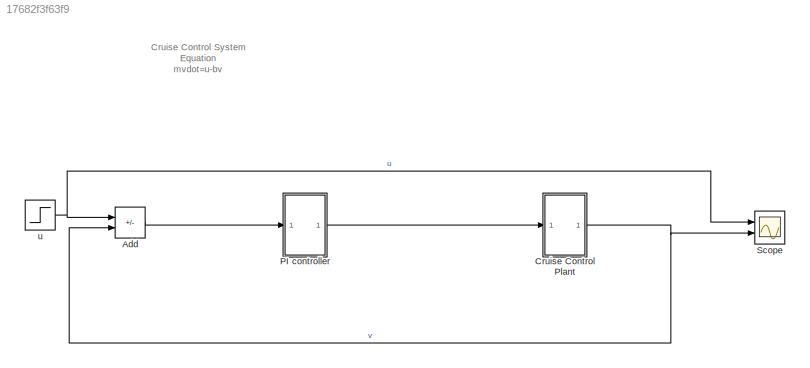
MODEL slx_17682f3f63f9
KIND model
CONFIG AbsTol = auto
CONFIG EnableMultiTasking = off
CONFIG FixedStep = auto
CONFIG MaxStep = auto
CONFIG MinStep = auto
CONFIG RelTol = 1e-3
CONFIG SampleTimeConstraint = Unconstrained
CONFIG SolverName = VariableStepAuto
CONFIG StartTime = 0.0
CONFIG StopTime = 10
BLOCK [Sum] Add
  IconShape = rectangular
  Inputs = +-
  Ports = [2, 1]
BLOCK [ModelReference] Cruise Control Plant
  ModelNameDialog = Cruise_Control_Plant
  ModelReferenceVersion = 1.6
  Ports = [1, 1]
BLOCK [ModelReference] PI controller
  ModelNameDialog = PI_controller
  ModelReferenceVersion = 1.7
  Ports = [1, 1]
BLOCK [Scope] Scope
  Floating = off
  NumInputPorts = 2
  Ports = [2]
  ScopeSpecificationString = Simulink.scopes.TimeScopeBlockCfg('CurrentConfiguration', extmgr.ConfigurationSet(extmgr.Configuration('Core','General UI',true),extmgr.Configuration('Core','Source UI',true),extmgr.Configuration('Sources','WiredSimulink',true),extmgr.Configuration('Visuals','Time Domain',true,'SerializedDisplays',{struct('MinYLimReal','-1.25','MaxYLimReal','11.25','YLabelReal','','MinYLimMag','0.00000','MaxYLimMa...<+1435ch>
BLOCK [Step] u
  After = u
  SampleTime = 0
  Time = 0
ANNOTATION (root): Cruise Control System Equation mvdot=u-bv
LINE Add:1 -> PI controller:1
NET Cruise Control Plant:1 -> Add:2, Scope:2
LINE PI controller:1 -> Cruise Control Plant:1
NET u:1 -> Add:1, Scope:1
note: NET lines group one-source signal fan-out (src -> all destinations, sorted); 1:1 wires keep LINE
